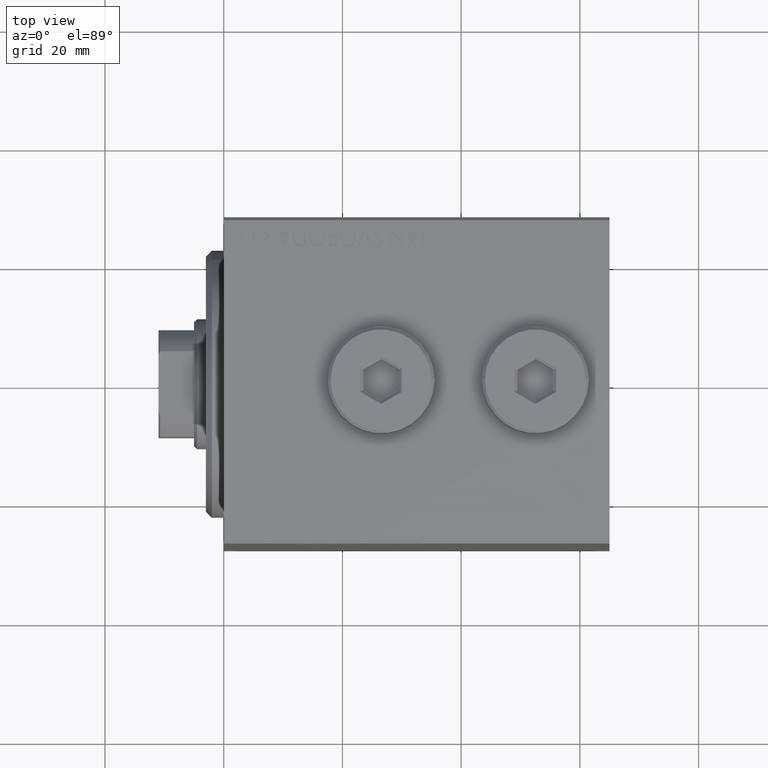
[diagram: clean part render]
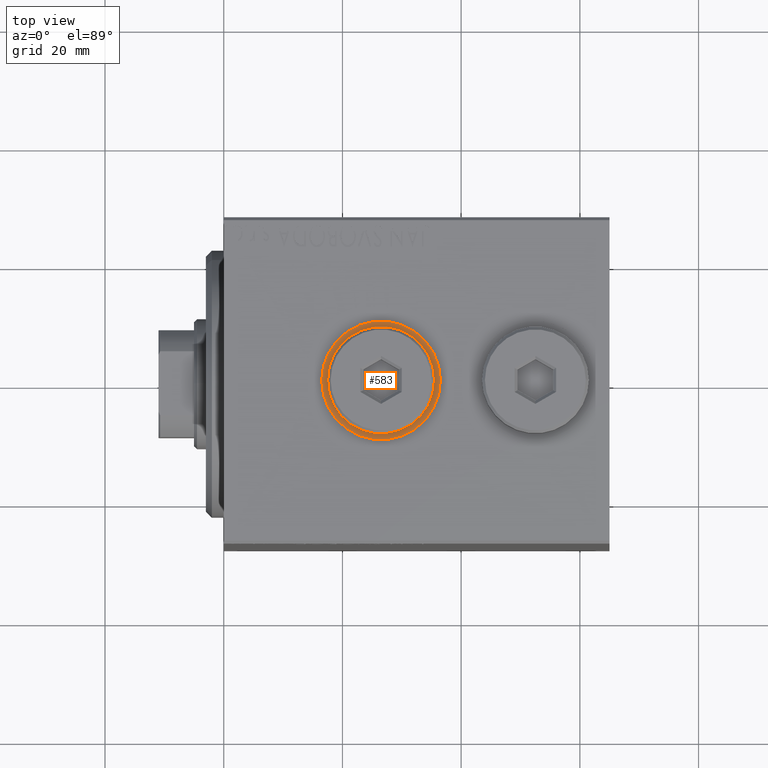
[diagram: same view with one face highlighted and labeled with its STEP entity id]
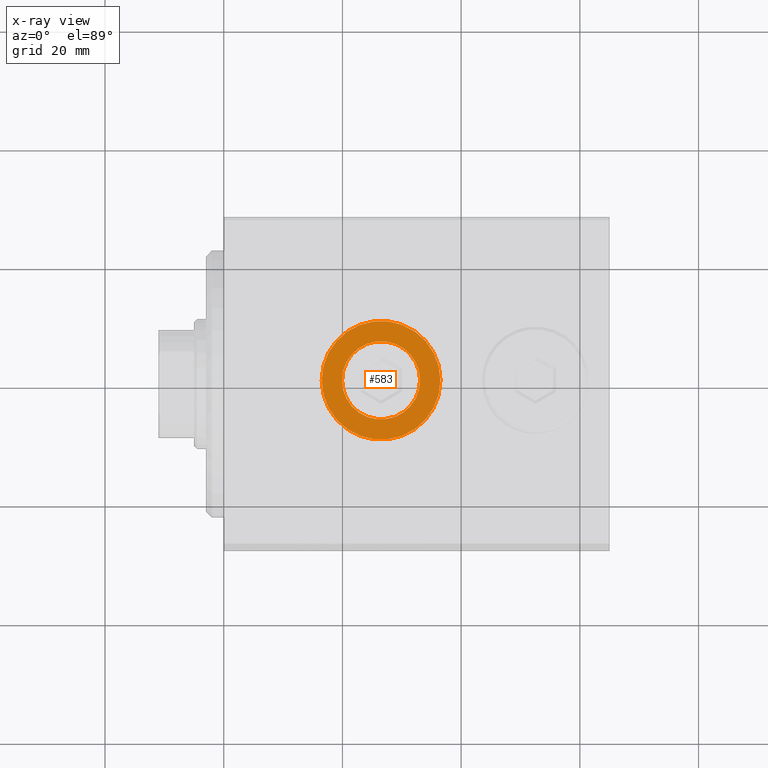
[diagram: x-ray of the same camera — body ghosted, the highlighted face saturated]
A machine part, top view. The second image highlights one B-rep face of the part: STEP entity #583.
The next image is the same camera in x-ray: the body ghosted, the highlighted face saturated — about 0% of this face is hidden behind the body in this view.
In plain terms, the highlighted planar face has unit normal (0, 0, 1).
Its self-contained STEP definition (entity closure, byte-faithful):
#107 = ORIENTED_EDGE ( 'NONE', *, *, #44136, .F. ) ;
#583 = ADVANCED_FACE ( 'NONE', ( #11030, #8057 ), #38859, .T. ) ;
#2517 = CARTESIAN_POINT ( 'NONE',  ( 16.50000000000000000, -3.506417226243939769E-15, 37.40000000000000568 ) ) ;
#3192 = VERTEX_POINT ( 'NONE', #39449 ) ;
#3264 = EDGE_CURVE ( 'NONE', #3192, #10413, #6350, .T. ) ;
#3793 = DIRECTION ( 'NONE',  ( 1.000000000000000000, 0.000000000000000000, 0.000000000000000000 ) ) ;
#4770 = CARTESIAN_POINT ( 'NONE',  ( 26.50000000000000000, -4.731064025391292434E-15, 37.40000000000000568 ) ) ;
#6350 = CIRCLE ( 'NONE', #10006, 6.579999999999999183 ) ;
#7303 = DIRECTION ( 'NONE',  ( 1.000000000000000000, 0.000000000000000000, 0.000000000000000000 ) ) ;
#8057 = FACE_OUTER_BOUND ( 'NONE', #9635, .T. ) ;
#9635 = EDGE_LOOP ( 'NONE', ( #37061, #41260 ) ) ;
#10006 = AXIS2_PLACEMENT_3D ( 'NONE', #4770, #42647, #18677 ) ;
#10325 = EDGE_CURVE ( 'NONE', #14677, #43187, #26824, .T. ) ;
#10413 = VERTEX_POINT ( 'NONE', #36075 ) ;
#10641 = CARTESIAN_POINT ( 'NONE',  ( 26.50000000000000000, -4.731064025391292434E-15, 37.40000000000000568 ) ) ;
#11030 = FACE_BOUND ( 'NONE', #36350, .T. ) ;
#14182 = DIRECTION ( 'NONE',  ( 0.000000000000000000, 0.000000000000000000, 1.000000000000000000 ) ) ;
#14408 = DIRECTION ( 'NONE',  ( 1.000000000000000000, 0.000000000000000000, 0.000000000000000000 ) ) ;
#14677 = VERTEX_POINT ( 'NONE', #31156 ) ;
#18012 = DIRECTION ( 'NONE',  ( 0.000000000000000000, 0.000000000000000000, 1.000000000000000000 ) ) ;
#18677 = DIRECTION ( 'NONE',  ( 1.000000000000000000, 0.000000000000000000, 0.000000000000000000 ) ) ;
#19733 = AXIS2_PLACEMENT_3D ( 'NONE', #10641, #24542, #3793 ) ;
#21016 = CARTESIAN_POINT ( 'NONE',  ( 26.50000000000000000, -4.731064025391292434E-15, 37.40000000000000568 ) ) ;
#24194 = CIRCLE ( 'NONE', #42431, 6.579999999999999183 ) ;
#24542 = DIRECTION ( 'NONE',  ( 0.000000000000000000, 0.000000000000000000, 1.000000000000000000 ) ) ;
#26824 = CIRCLE ( 'NONE', #44315, 9.999999999999998224 ) ;
#28386 = ORIENTED_EDGE ( 'NONE', *, *, #3264, .F. ) ;
#31156 = CARTESIAN_POINT ( 'NONE',  ( 36.50000000000000000, -4.731064025391292434E-15, 37.40000000000000568 ) ) ;
#34740 = AXIS2_PLACEMENT_3D ( 'NONE', #42720, #42275, #36343 ) ;
#35931 = EDGE_CURVE ( 'NONE', #43187, #14677, #42345, .T. ) ;
#36075 = CARTESIAN_POINT ( 'NONE',  ( 33.07999999999999829, -4.731064025391292434E-15, 37.40000000000000568 ) ) ;
#36343 = DIRECTION ( 'NONE',  ( 1.000000000000000000, 0.000000000000000000, -0.000000000000000000 ) ) ;
#36350 = EDGE_LOOP ( 'NONE', ( #107, #28386 ) ) ;
#37061 = ORIENTED_EDGE ( 'NONE', *, *, #10325, .T. ) ;
#38859 = PLANE ( 'NONE',  #34740 ) ;
#39449 = CARTESIAN_POINT ( 'NONE',  ( 19.92000000000000171, -3.925246431552334181E-15, 37.40000000000000568 ) ) ;
#41260 = ORIENTED_EDGE ( 'NONE', *, *, #35931, .T. ) ;
#42275 = DIRECTION ( 'NONE',  ( 0.000000000000000000, 0.000000000000000000, 1.000000000000000000 ) ) ;
#42345 = CIRCLE ( 'NONE', #19733, 9.999999999999998224 ) ;
#42431 = AXIS2_PLACEMENT_3D ( 'NONE', #42641, #18012, #7303 ) ;
#42641 = CARTESIAN_POINT ( 'NONE',  ( 26.50000000000000000, -4.731064025391292434E-15, 37.40000000000000568 ) ) ;
#42647 = DIRECTION ( 'NONE',  ( 0.000000000000000000, 0.000000000000000000, 1.000000000000000000 ) ) ;
#42720 = CARTESIAN_POINT ( 'NONE',  ( 26.50000000000000000, -4.731064025391292434E-15, 37.40000000000000568 ) ) ;
#43187 = VERTEX_POINT ( 'NONE', #2517 ) ;
#44136 = EDGE_CURVE ( 'NONE', #10413, #3192, #24194, .T. ) ;
#44315 = AXIS2_PLACEMENT_3D ( 'NONE', #21016, #14182, #14408 ) ;